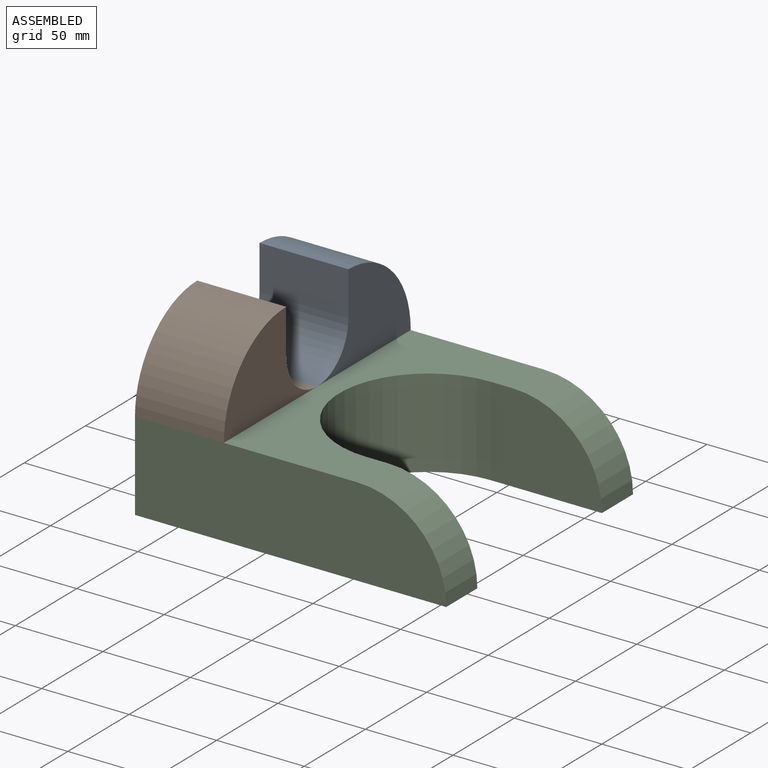
[diagram: assembled view]
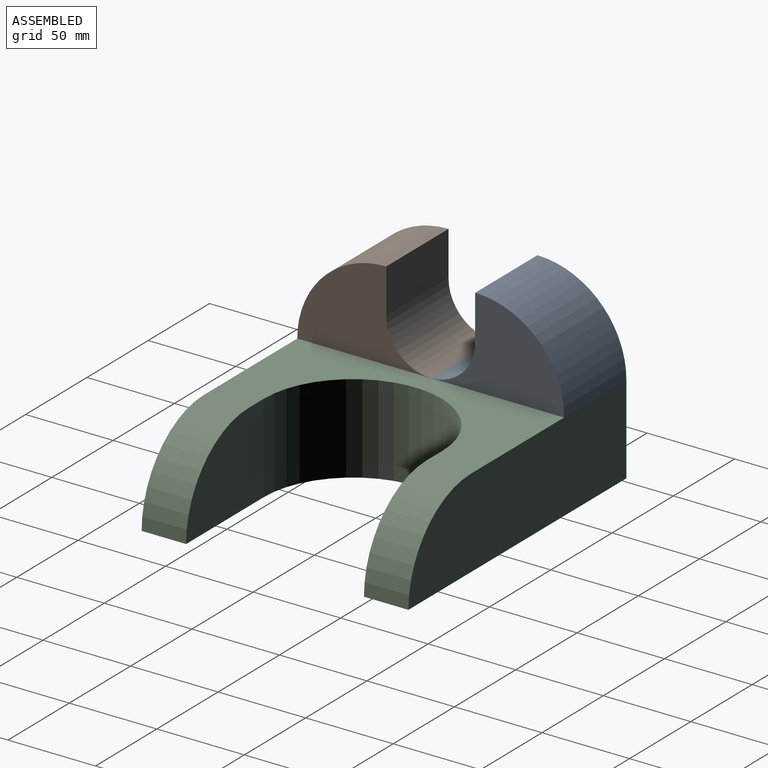
[diagram: assembled view, second angle]
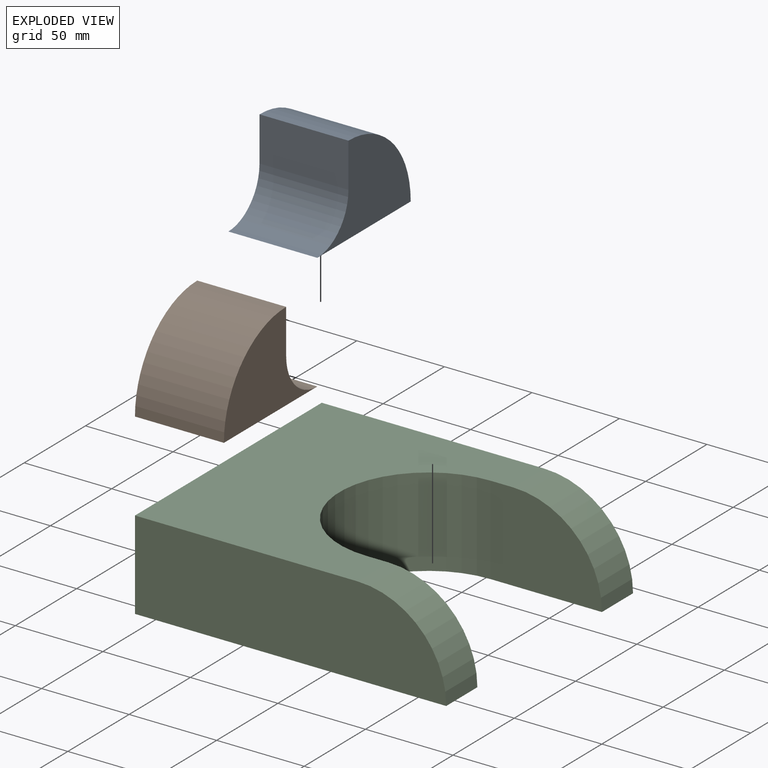
[diagram: exploded view]
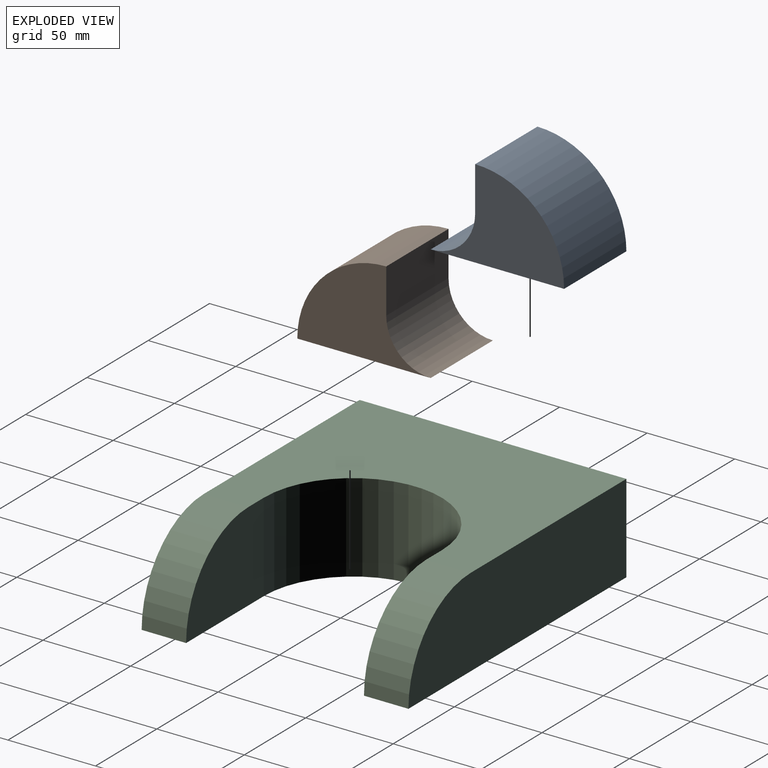
[diagram: exploded view, second angle]
ASSEMBLY  parts=3 mates=2
PART A: 6 faces, bbox 50.8x76.2x50.8 mm
  f0: plane 76.2x50.8mm, normal (0,0,-1), area 3871mm2, adj f1,f2,f4,f5
  f1: plane 76.2x50.8mm, normal (1,0,0), area 2165.3mm2, adj f0,f3,f4,f5
  f2: plane 76.2x50.8mm, normal (-1,0,0), area 2165.3mm2, adj f0,f3,f4,f5
  f3: plane 50.8x25.4mm, normal (0,-1,0), area 1290.3mm2, adj f1,f2,f4,f5
  f4: cylinder r=50.8mm len=50.8mm, axis (1,0,0), area 4053.7mm2, adj f0,f1,f2,f3
  f5: cylinder r=25.4mm len=50.8mm, axis (1,0,0), area 2026.8mm2, adj f0,f1,f2,f3
PART B: 6 faces, bbox 50.8x76.2x50.8 mm
  f0: cylinder r=50.8mm len=50.8mm, axis (1,0,0), area 4053.7mm2, adj f1,f2,f3,f4
  f1: plane 76.2x50.8mm, normal (0,0,-1), area 3871mm2, adj f0,f2,f3,f5
  f2: plane 76.2x50.8mm, normal (-1,0,0), area 2165.3mm2, adj f0,f1,f4,f5
  f3: plane 76.2x50.8mm, normal (1,0,0), area 2165.3mm2, adj f0,f1,f4,f5
  f4: plane 50.8x25.4mm, normal (0,1,0), area 1290.3mm2, adj f0,f2,f3,f5
  f5: cylinder r=25.4mm len=50.8mm, axis (1,0,0), area 2026.8mm2, adj f1,f2,f3,f4
PART C: 10 faces, bbox 177.8x152.4x50.8 mm
  f0: plane 177.8x50.8mm, normal (0,1,0), area 8478.4mm2, adj f4,f5,f6,f8
  f1: plane 177.8x50.8mm, normal (0,-1,0), area 8478.4mm2, adj f4,f5,f6,f9
  f2: plane 63.5x50.8mm, normal (0,1,0), area 2672mm2, adj f4,f6,f7,f9
  f3: plane 63.5x50.8mm, normal (0,-1,0), area 2672mm2, adj f4,f6,f7,f8
  f4: plane 177.8x152.4mm, normal (0,0,-1), area 16591.5mm2, adj f0,f1,f2,f3,f5,f7,f8,f9
  f5: plane 152.4x50.8mm, normal (-1,0,0), area 7741.9mm2, adj f0,f1,f4,f6
  f6: plane 152.4x127mm, normal (0,0,1), area 14010.8mm2, adj f0,f1,f2,f3,f5,f7,f8,f9
  f7: cylinder r=50.8mm len=101.6mm, axis (0,0,1), area 8107.3mm2, adj f2,f3,f4,f6
  f8: cylinder r=50.8mm len=50.8mm, axis (0,-1,0), area 2026.8mm2, adj f0,f3,f4,f6
  f9: cylinder r=50.8mm len=50.8mm, axis (0,-1,0), area 2026.8mm2, adj f1,f2,f4,f6
PLACE A t=(-31.46,12.2,31.07)mm
PLACE B t=(-31.46,12.2,31.07)mm
PLACE C t=(32.04,12.2,-19.73)mm
MATE fastened B.f1 <-> C.f6  axis (0,0,-1) through (-56.86,-64,31.07)mm
MATE fastened A.f0 <-> C.f6  axis (0,0,-1) through (-56.86,88.4,31.07)mm
